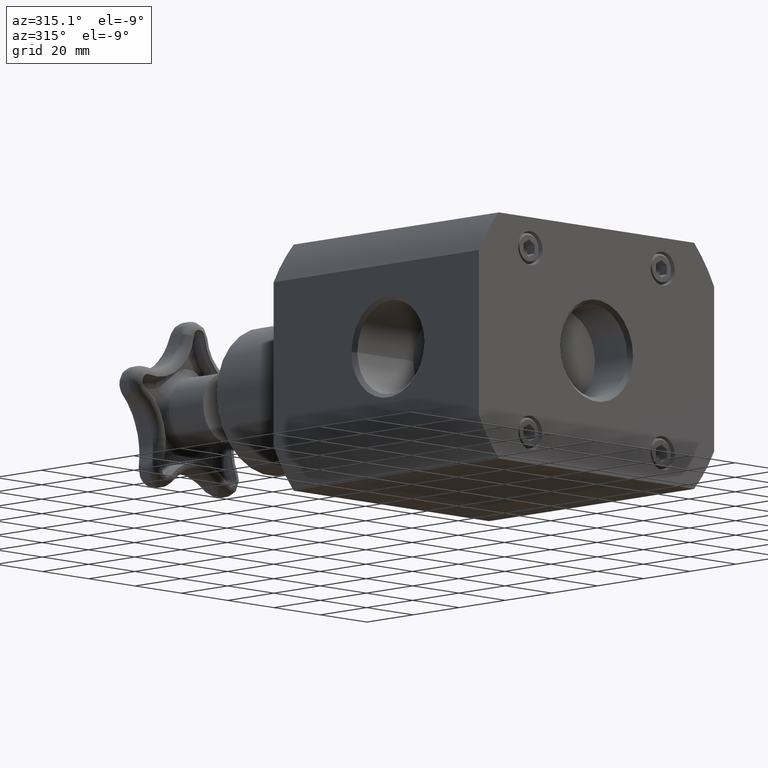
[diagram: clean part render]
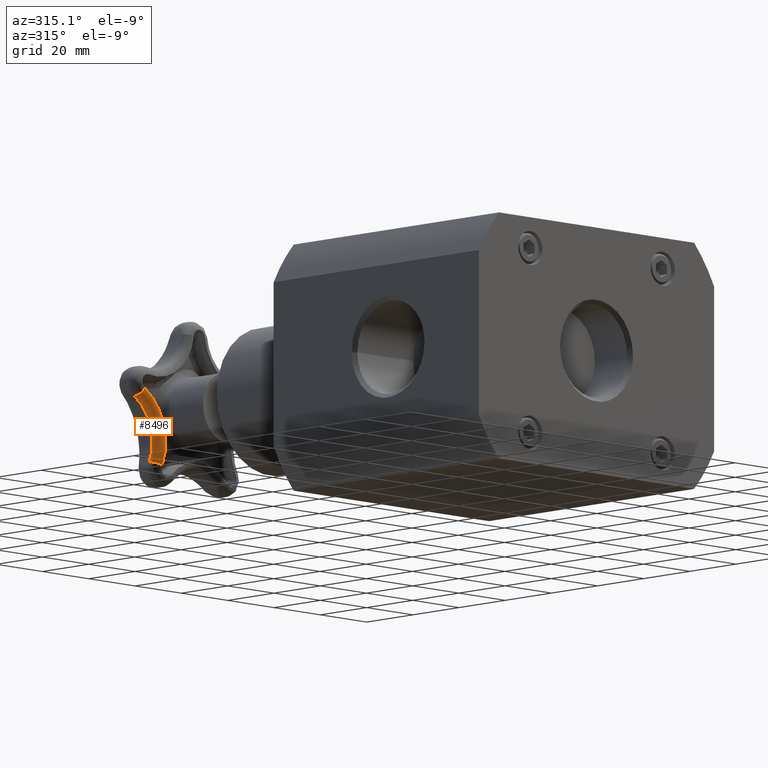
[diagram: same view with one face highlighted and labeled with its STEP entity id]
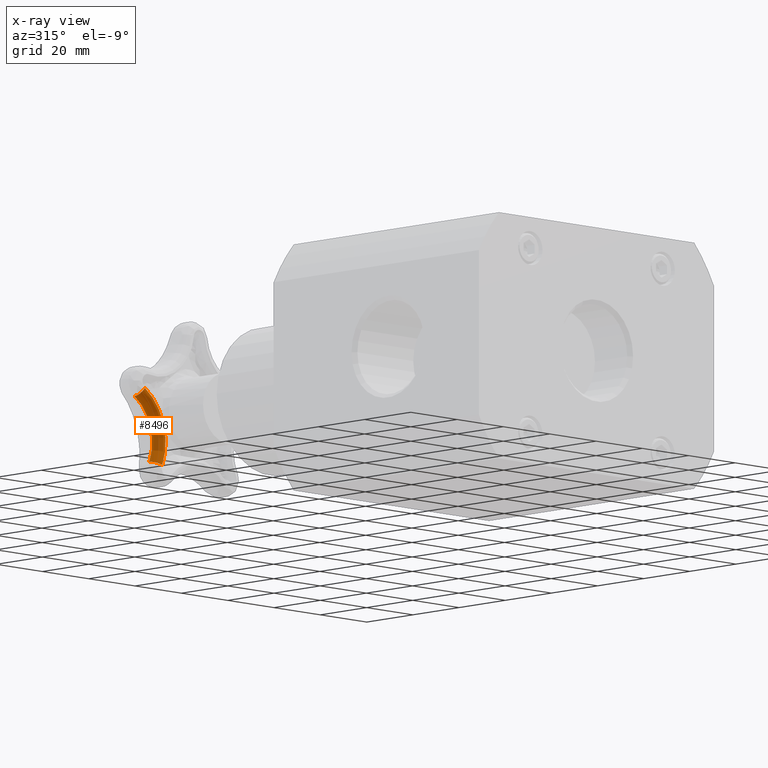
[diagram: x-ray of the same camera — body ghosted, the highlighted face saturated]
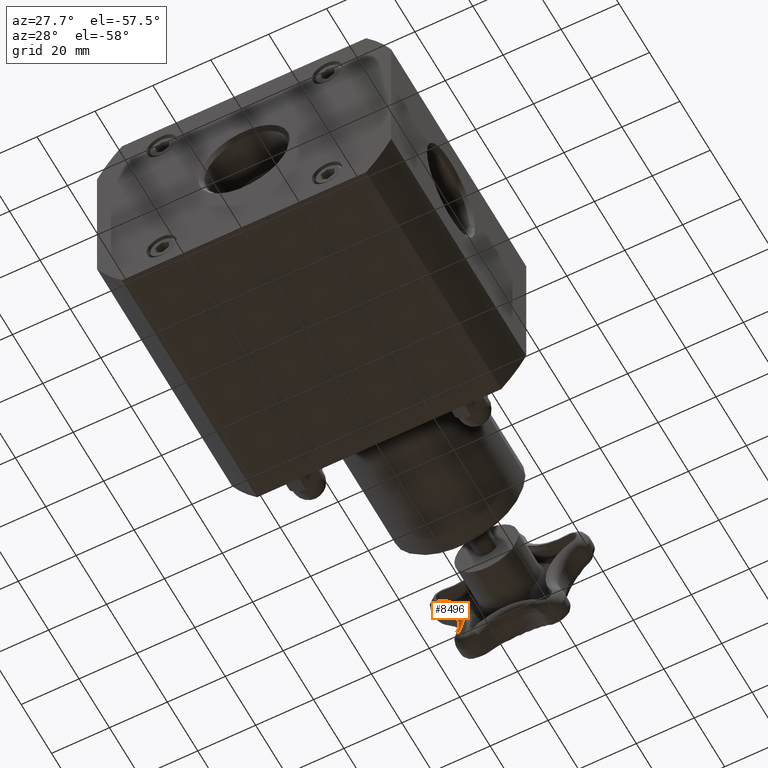
[diagram: same view with one face highlighted and labeled with its STEP entity id]
A machine part, auxiliary view. The second image highlights one B-rep face of the part: STEP entity #8496.
The next image is the same camera in x-ray: the body ghosted, the highlighted face saturated — about 0% of this face is hidden behind the body in this view.
A second angle (auxiliary view) of the same face is appended — the face is thin or edge-on in the first view.
In plain terms, the highlighted toroidal blend (fillet) surface has major radius 18.916 mm and minor (blend) radius 3.048 mm.
Its self-contained STEP definition (entity closure, byte-faithful):
#8295=CARTESIAN_POINT('',(-0.924837638107953,6.775996896544323,0.202369013049153));
#8296=VERTEX_POINT('',#8295);
#8347=CARTESIAN_POINT('',(-0.629259844875651,6.775996896544327,-0.707325895136505));
#8348=VERTEX_POINT('',#8347);
#8358=CARTESIAN_POINT('',(-1.306367577945870,6.775996896544326,-0.424464556594687));
#8359=DIRECTION('',(-7.447068E-016,1.000000000000000,-2.419699E-016));
#8360=DIRECTION('',(0.951056516295154,7.830311E-016,0.309016994374946));
#8361=AXIS2_PLACEMENT_3D('',#8358,#8359,#8360);
#8362=CIRCLE('',#8361,0.733815657386213);
#8363=EDGE_CURVE('',#8296,#8348,#8362,.T.);
#8463=CARTESIAN_POINT('',(-1.306367577945870,6.895499999999998,-0.424464556594687));
#8464=DIRECTION('',(8.233276E-016,-1.0,-9.328202E-032));
#8465=DIRECTION('',(0.0,0.0,-1.0));
#8466=AXIS2_PLACEMENT_3D('',#8463,#8464,#8465);
#8467=TOROIDAL_SURFACE('',#8466,0.744724748295304,0.120000000000000);
#8468=ORIENTED_EDGE('',*,*,#8363,.F.);
#8469=CARTESIAN_POINT('',(-0.981556853027095,6.895500000000000,0.109182334252032));
#8470=VERTEX_POINT('',#8469);
#8471=CARTESIAN_POINT('',(-0.919165716616039,6.895500000000000,0.211687680928865));
#8472=DIRECTION('',(-0.854211222306921,-7.032957E-016,0.519926136758787));
#8473=DIRECTION('',(-0.519926136758787,-4.280695E-016,-0.854211222306921));
#8474=AXIS2_PLACEMENT_3D('',#8471,#8472,#8473);
#8475=CIRCLE('',#8474,0.120000000000003);
#8476=EDGE_CURVE('',#8470,#8296,#8475,.T.);
#8477=ORIENTED_EDGE('',*,*,#8476,.F.);
#8478=CARTESIAN_POINT('',(-0.729920409159902,6.895500000000000,-0.665275006391353));
#8479=VERTEX_POINT('',#8478);
#8480=CARTESIAN_POINT('',(-1.306367577945870,6.895499999999998,-0.424464556594687));
#8481=DIRECTION('',(-7.447068E-016,1.000000000000000,-2.419699E-016));
#8482=DIRECTION('',(0.951056516295154,7.830311E-016,0.309016994374947));
#8483=AXIS2_PLACEMENT_3D('',#8480,#8481,#8482);
#8484=CIRCLE('',#8483,0.624724748295304);
#8485=EDGE_CURVE('',#8470,#8479,#8484,.T.);
#8486=ORIENTED_EDGE('',*,*,#8485,.T.);
#8487=CARTESIAN_POINT('',(-0.619193788447226,6.895500000000000,-0.711530984011020));
#8488=DIRECTION('',(0.385466480163894,3.173652E-016,0.922721839272301));
#8489=DIRECTION('',(-0.922721839272301,-7.597023E-016,0.385466480163894));
#8490=AXIS2_PLACEMENT_3D('',#8487,#8488,#8489);
#8491=CIRCLE('',#8490,0.120000000000000);
#8492=EDGE_CURVE('',#8479,#8348,#8491,.T.);
#8493=ORIENTED_EDGE('',*,*,#8492,.T.);
#8494=EDGE_LOOP('',(#8468,#8477,#8486,#8493));
#8495=FACE_OUTER_BOUND('',#8494,.T.);
#8496=ADVANCED_FACE('',(#8495),#8467,.T.);